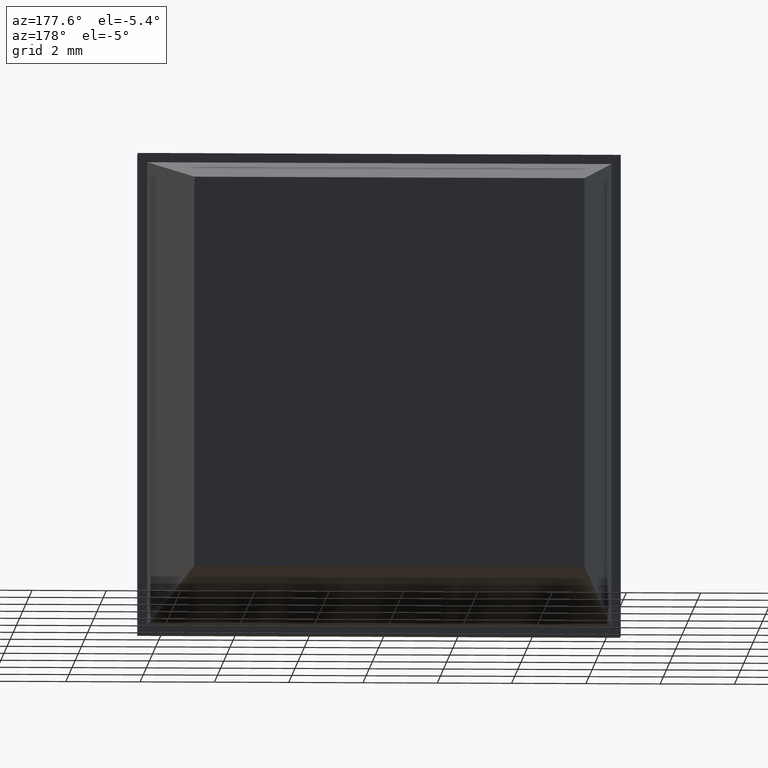
[diagram: clean part render]
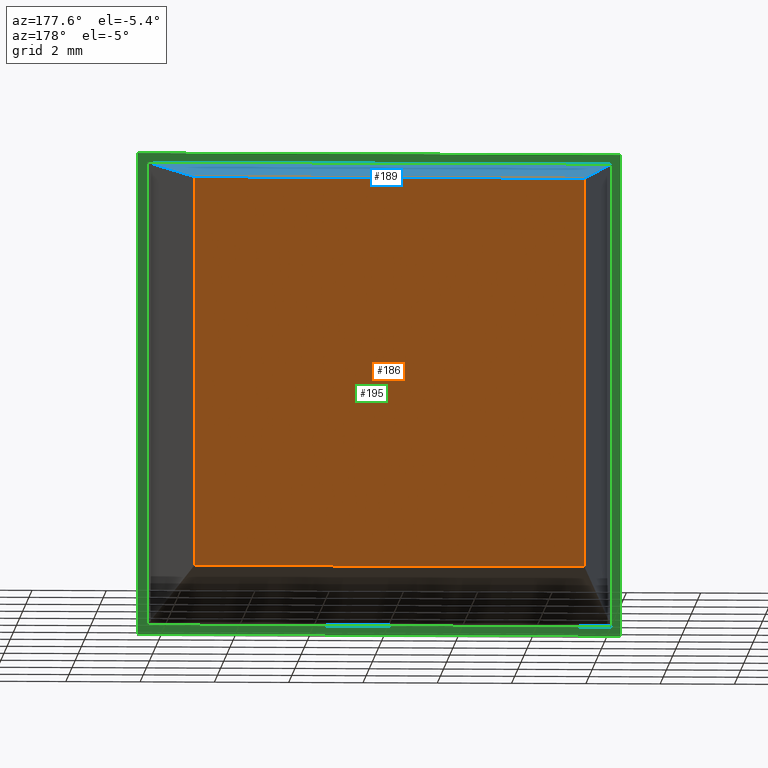
[diagram: same view with three faces highlighted in distinct colors, each labeled with its STEP entity id]
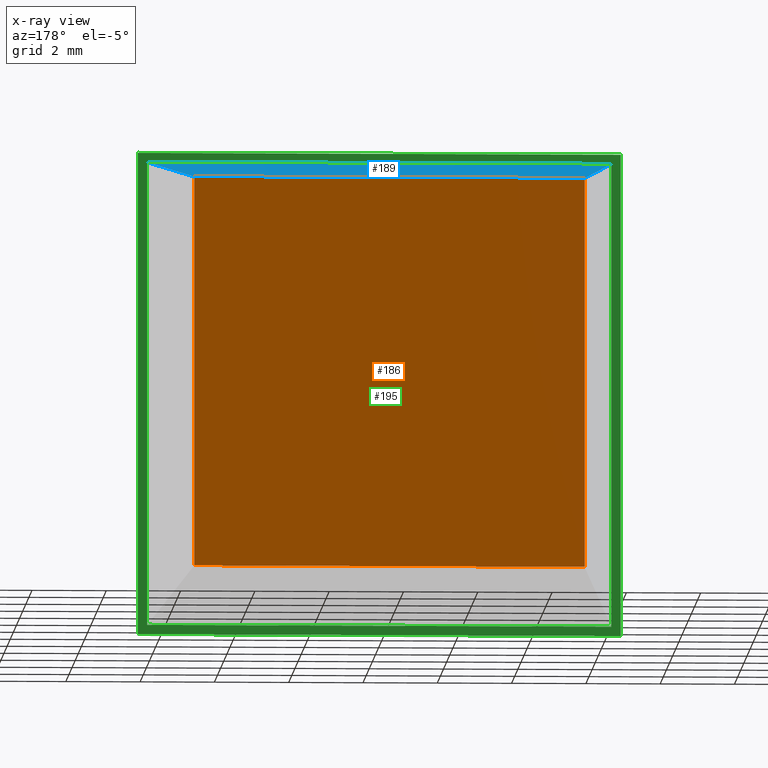
[diagram: x-ray of the same camera — body ghosted, the three highlighted faces saturated]
A machine part, auxiliary view with three faces highlighted in distinct colors.
The next image is the same camera in x-ray (body ghosted, the three faces saturated) — at least one of them is partly hidden behind the body in this view.
Their STEP definitions:

[orange] entity #186 — the highlighted planar face has unit normal (0, 1, -0).
#16=FACE_OUTER_BOUND('',#27,.T.);
#27=EDGE_LOOP('',(#127,#128,#129,#130));
#39=LINE('',#262,#63);
#40=LINE('',#264,#64);
#41=LINE('',#266,#65);
#42=LINE('',#267,#66);
#63=VECTOR('',#214,10.5);
#64=VECTOR('',#215,10.5);
#65=VECTOR('',#216,10.5);
#66=VECTOR('',#217,10.5);
#87=VERTEX_POINT('',#260);
#88=VERTEX_POINT('',#261);
#89=VERTEX_POINT('',#263);
#90=VERTEX_POINT('',#265);
#103=EDGE_CURVE('',#87,#88,#39,.T.);
#104=EDGE_CURVE('',#89,#87,#40,.T.);
#105=EDGE_CURVE('',#90,#89,#41,.T.);
#106=EDGE_CURVE('',#88,#90,#42,.T.);
#127=ORIENTED_EDGE('',*,*,#103,.F.);
#128=ORIENTED_EDGE('',*,*,#104,.F.);
#129=ORIENTED_EDGE('',*,*,#105,.F.);
#130=ORIENTED_EDGE('',*,*,#106,.F.);
#175=PLANE('',#199);
#186=ADVANCED_FACE('',(#16),#175,.T.);
#199=AXIS2_PLACEMENT_3D('',#259,#212,#213);
#212=DIRECTION('center_axis',(5.33970220476537E-32,1.,-4.6722394291697E-32));
#213=DIRECTION('ref_axis',(0.,0.,1.));
#214=DIRECTION('',(1.,0.,0.));
#215=DIRECTION('',(0.,0.,-1.));
#216=DIRECTION('',(-1.,0.,0.));
#217=DIRECTION('',(0.,0.,1.));
#259=CARTESIAN_POINT('Origin',(0.,7.,7.56970244062607E-17));
#260=CARTESIAN_POINT('',(-5.25,7.,-5.25));
#261=CARTESIAN_POINT('',(5.25,7.,-5.25));
#262=CARTESIAN_POINT('',(-5.25,7.,-5.25));
#263=CARTESIAN_POINT('',(-5.25,7.,5.25));
#264=CARTESIAN_POINT('',(-5.25,7.,5.25));
#265=CARTESIAN_POINT('',(5.25,7.,5.25));
#266=CARTESIAN_POINT('',(5.25,7.,5.25));
#267=CARTESIAN_POINT('',(5.25,7.,-5.25));

[blue] entity #189 — the highlighted planar face has unit normal (0, 0.1521, 0.9884).
#19=FACE_OUTER_BOUND('',#30,.T.);
#30=EDGE_LOOP('',(#139,#140,#141,#142));
#41=LINE('',#266,#65);
#46=LINE('',#276,#70);
#48=LINE('',#280,#72);
#49=LINE('',#281,#73);
#65=VECTOR('',#216,10.5);
#70=VECTOR('',#225,6.65206734782504);
#72=VECTOR('',#229,6.65206734782504);
#73=VECTOR('',#230,12.5);
#89=VERTEX_POINT('',#263);
#90=VERTEX_POINT('',#265);
#93=VERTEX_POINT('',#275);
#94=VERTEX_POINT('',#279);
#105=EDGE_CURVE('',#90,#89,#41,.T.);
#110=EDGE_CURVE('',#90,#93,#46,.T.);
#112=EDGE_CURVE('',#89,#94,#48,.T.);
#113=EDGE_CURVE('',#93,#94,#49,.T.);
#139=ORIENTED_EDGE('',*,*,#105,.T.);
#140=ORIENTED_EDGE('',*,*,#112,.T.);
#141=ORIENTED_EDGE('',*,*,#113,.F.);
#142=ORIENTED_EDGE('',*,*,#110,.F.);
#178=PLANE('',#202);
#189=ADVANCED_FACE('',(#19),#178,.T.);
#202=AXIS2_PLACEMENT_3D('',#278,#227,#228);
#216=DIRECTION('',(-1.,0.,0.));
#225=DIRECTION('',(0.150329205600566,-0.977139836403678,0.150329205600566));
#227=DIRECTION('center_axis',(1.61615729536989E-17,0.152057184253941,0.988371697650617));
#228=DIRECTION('ref_axis',(1.,0.,0.));
#229=DIRECTION('',(-0.150329205600566,-0.977139836403678,0.150329205600566));
#230=DIRECTION('',(-1.,0.,1.63517156471754E-17));
#263=CARTESIAN_POINT('',(-5.25,7.,5.25));
#265=CARTESIAN_POINT('',(5.25,7.,5.25));
#266=CARTESIAN_POINT('',(5.25,7.,5.25));
#275=CARTESIAN_POINT('',(6.25,0.5,6.25));
#276=CARTESIAN_POINT('',(5.25,7.,5.25));
#278=CARTESIAN_POINT('Origin',(5.25,7.,5.25));
#279=CARTESIAN_POINT('',(-6.25,0.5,6.25));
#280=CARTESIAN_POINT('',(-5.25,7.,5.25));
#281=CARTESIAN_POINT('',(2.625,0.5,6.25));

[green] entity #195 — the highlighted planar face has unit normal (0, 1, 0).
#15=FACE_BOUND('',#37,.T.);
#25=FACE_OUTER_BOUND('',#36,.T.);
#36=EDGE_LOOP('',(#163,#164,#165,#166));
#37=EDGE_LOOP('',(#167,#168,#169,#170));
#44=LINE('',#272,#68);
#47=LINE('',#277,#71);
#49=LINE('',#281,#73);
#50=LINE('',#283,#74);
#53=LINE('',#291,#77);
#56=LINE('',#297,#80);
#59=LINE('',#303,#83);
#62=LINE('',#307,#86);
#68=VECTOR('',#221,12.5);
#71=VECTOR('',#226,12.5);
#73=VECTOR('',#230,12.5);
#74=VECTOR('',#233,12.5);
#77=VECTOR('',#238,13.);
#80=VECTOR('',#243,13.);
#83=VECTOR('',#248,13.);
#86=VECTOR('',#253,13.);
#91=VERTEX_POINT('',#269);
#92=VERTEX_POINT('',#271);
#93=VERTEX_POINT('',#275);
#94=VERTEX_POINT('',#279);
#97=VERTEX_POINT('',#288);
#98=VERTEX_POINT('',#290);
#100=VERTEX_POINT('',#296);
#102=VERTEX_POINT('',#302);
#108=EDGE_CURVE('',#92,#91,#44,.T.);
#111=EDGE_CURVE('',#91,#93,#47,.T.);
#113=EDGE_CURVE('',#93,#94,#49,.T.);
#114=EDGE_CURVE('',#94,#92,#50,.T.);
#117=EDGE_CURVE('',#98,#97,#53,.T.);
#120=EDGE_CURVE('',#100,#98,#56,.T.);
#123=EDGE_CURVE('',#102,#100,#59,.T.);
#126=EDGE_CURVE('',#97,#102,#62,.T.);
#163=ORIENTED_EDGE('',*,*,#126,.T.);
#164=ORIENTED_EDGE('',*,*,#123,.T.);
#165=ORIENTED_EDGE('',*,*,#120,.T.);
#166=ORIENTED_EDGE('',*,*,#117,.T.);
#167=ORIENTED_EDGE('',*,*,#108,.T.);
#168=ORIENTED_EDGE('',*,*,#111,.T.);
#169=ORIENTED_EDGE('',*,*,#113,.T.);
#170=ORIENTED_EDGE('',*,*,#114,.T.);
#184=PLANE('',#208);
#195=ADVANCED_FACE('',(#25,#15),#184,.T.);
#208=AXIS2_PLACEMENT_3D('',#308,#254,#255);
#221=DIRECTION('',(1.,0.,-1.63517156471754E-17));
#226=DIRECTION('',(1.63517156471754E-17,0.,1.));
#230=DIRECTION('',(-1.,0.,1.63517156471754E-17));
#233=DIRECTION('',(-1.63517156471754E-17,0.,-1.));
#238=DIRECTION('',(0.,0.,1.));
#243=DIRECTION('',(-1.,0.,0.));
#248=DIRECTION('',(0.,0.,-1.));
#253=DIRECTION('',(1.,0.,0.));
#254=DIRECTION('center_axis',(0.,1.,0.));
#255=DIRECTION('ref_axis',(0.,0.,1.));
#269=CARTESIAN_POINT('',(6.25,0.5,-6.25));
#271=CARTESIAN_POINT('',(-6.25,0.5,-6.25));
#272=CARTESIAN_POINT('',(-2.625,0.5,-6.25));
#275=CARTESIAN_POINT('',(6.25,0.5,6.25));
#277=CARTESIAN_POINT('',(6.25,0.5,-2.625));
#279=CARTESIAN_POINT('',(-6.25,0.5,6.25));
#281=CARTESIAN_POINT('',(2.625,0.5,6.25));
#283=CARTESIAN_POINT('',(-6.25,0.5,2.625));
#288=CARTESIAN_POINT('',(-6.5,0.5,6.5));
#290=CARTESIAN_POINT('',(-6.5,0.5,-6.5));
#291=CARTESIAN_POINT('',(-6.5,0.5,6.5));
#296=CARTESIAN_POINT('',(6.5,0.5,-6.5));
#297=CARTESIAN_POINT('',(-6.5,0.5,-6.5));
#302=CARTESIAN_POINT('',(6.5,0.5,6.5));
#303=CARTESIAN_POINT('',(6.5,0.5,-6.5));
#307=CARTESIAN_POINT('',(6.5,0.5,6.5));
#308=CARTESIAN_POINT('Origin',(0.,0.5,0.));